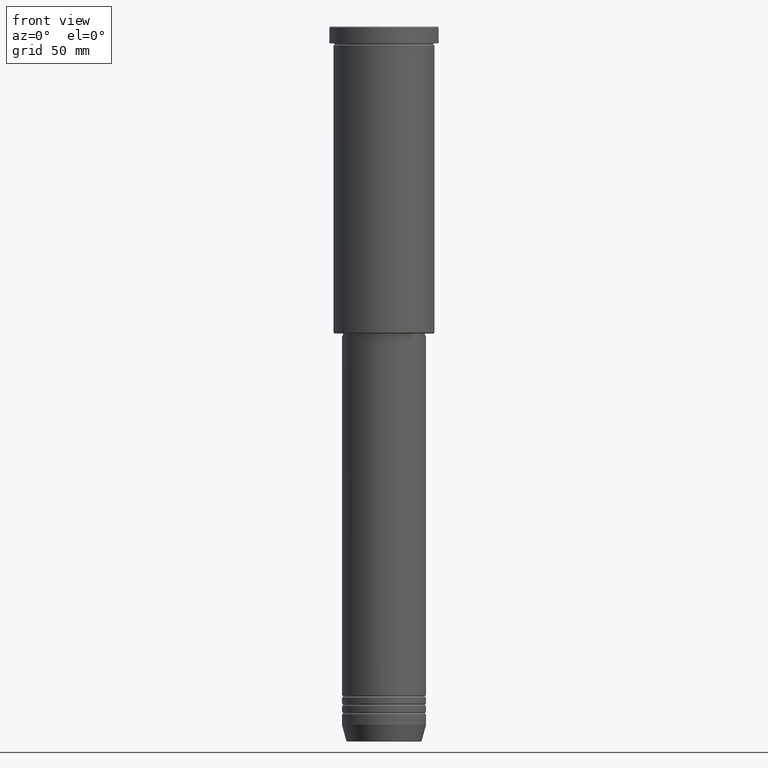
[diagram: clean part render]
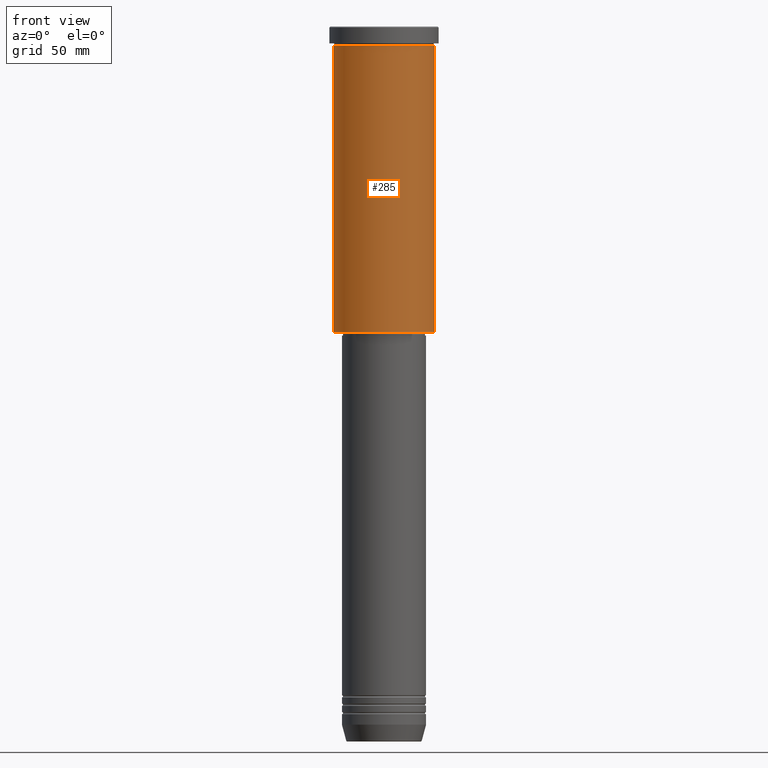
[diagram: same view with one face highlighted and labeled with its STEP entity id]
A machine part, front view. The second image highlights one B-rep face of the part: STEP entity #285.
In plain terms, the highlighted cylindrical surface (partial cylindrical patch) has radius 24 mm, axis along (-0, -0, 1).
Its self-contained STEP definition (entity closure, byte-faithful):
#66 = DIRECTION ( 'NONE',  ( 1.000000000000000000, 0.000000000000000000, 0.000000000000000000 ) ) ;
#72 = CARTESIAN_POINT ( 'NONE',  ( 24.00000000000000000, 0.000000000000000000, 0.000000000000000000 ) ) ;
#76 = EDGE_CURVE ( 'NONE', #408, #214, #741, .T. ) ;
#97 = CARTESIAN_POINT ( 'NONE',  ( -24.00000000000000000, 2.939152317953647894E-15, -145.5000000000000000 ) ) ;
#132 = VECTOR ( 'NONE', #1148, 1000.000000000000000 ) ;
#156 = CYLINDRICAL_SURFACE ( 'NONE', #651, 24.00000000000000000 ) ;
#172 = CARTESIAN_POINT ( 'NONE',  ( 0.000000000000000000, 0.000000000000000000, 0.000000000000000000 ) ) ;
#203 = EDGE_LOOP ( 'NONE', ( #834, #771, #300, #535 ) ) ;
#214 = VERTEX_POINT ( 'NONE', #785 ) ;
#256 = EDGE_CURVE ( 'NONE', #1170, #288, #612, .T. ) ;
#285 = ADVANCED_FACE ( 'NONE', ( #616 ), #156, .T. ) ;
#288 = VERTEX_POINT ( 'NONE', #423 ) ;
#300 = ORIENTED_EDGE ( 'NONE', *, *, #1071, .T. ) ;
#304 = CARTESIAN_POINT ( 'NONE',  ( 0.000000000000000000, 0.000000000000000000, -145.5000000000000000 ) ) ;
#342 = CARTESIAN_POINT ( 'NONE',  ( 0.000000000000000000, 0.000000000000000000, -8.999999999999994671 ) ) ;
#408 = VERTEX_POINT ( 'NONE', #97 ) ;
#423 = CARTESIAN_POINT ( 'NONE',  ( 24.00000000000000000, 0.000000000000000000, -8.999999999999994671 ) ) ;
#505 = VECTOR ( 'NONE', #900, 1000.000000000000000 ) ;
#535 = ORIENTED_EDGE ( 'NONE', *, *, #256, .F. ) ;
#606 = LINE ( 'NONE', #971, #505 ) ;
#612 = CIRCLE ( 'NONE', #1153, 24.00000000000000000 ) ;
#616 = FACE_OUTER_BOUND ( 'NONE', #203, .T. ) ;
#620 = DIRECTION ( 'NONE',  ( -0.000000000000000000, -0.000000000000000000, 1.000000000000000000 ) ) ;
#651 = AXIS2_PLACEMENT_3D ( 'NONE', #172, #888, #66 ) ;
#697 = DIRECTION ( 'NONE',  ( 1.000000000000000000, 0.000000000000000000, 0.000000000000000000 ) ) ;
#741 = CIRCLE ( 'NONE', #816, 24.00000000000000000 ) ;
#771 = ORIENTED_EDGE ( 'NONE', *, *, #76, .T. ) ;
#785 = CARTESIAN_POINT ( 'NONE',  ( 24.00000000000000000, 0.000000000000000000, -145.5000000000000000 ) ) ;
#816 = AXIS2_PLACEMENT_3D ( 'NONE', #304, #865, #1052 ) ;
#834 = ORIENTED_EDGE ( 'NONE', *, *, #1076, .F. ) ;
#865 = DIRECTION ( 'NONE',  ( -0.000000000000000000, -0.000000000000000000, 1.000000000000000000 ) ) ;
#874 = LINE ( 'NONE', #72, #132 ) ;
#888 = DIRECTION ( 'NONE',  ( -0.000000000000000000, -0.000000000000000000, 1.000000000000000000 ) ) ;
#900 = DIRECTION ( 'NONE',  ( -0.000000000000000000, -0.000000000000000000, 1.000000000000000000 ) ) ;
#971 = CARTESIAN_POINT ( 'NONE',  ( -24.00000000000000000, 2.939152317953647894E-15, 0.000000000000000000 ) ) ;
#1052 = DIRECTION ( 'NONE',  ( -1.000000000000000000, 0.000000000000000000, 0.000000000000000000 ) ) ;
#1071 = EDGE_CURVE ( 'NONE', #214, #288, #874, .T. ) ;
#1076 = EDGE_CURVE ( 'NONE', #408, #1170, #606, .T. ) ;
#1148 = DIRECTION ( 'NONE',  ( -0.000000000000000000, -0.000000000000000000, 1.000000000000000000 ) ) ;
#1153 = AXIS2_PLACEMENT_3D ( 'NONE', #342, #620, #697 ) ;
#1170 = VERTEX_POINT ( 'NONE', #1172 ) ;
#1172 = CARTESIAN_POINT ( 'NONE',  ( -24.00000000000000000, 2.939152317953647894E-15, -8.999999999999994671 ) ) ;